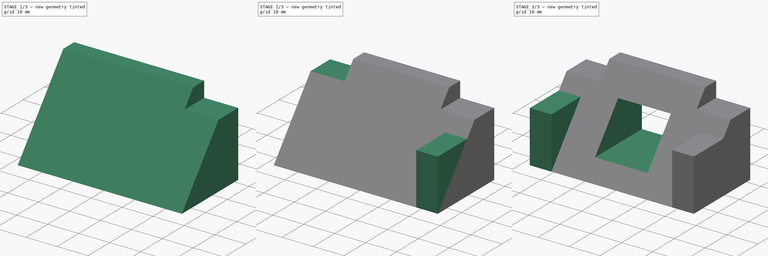
[diagram: build sequence overview — one tinted view per stage of 3, left to right]
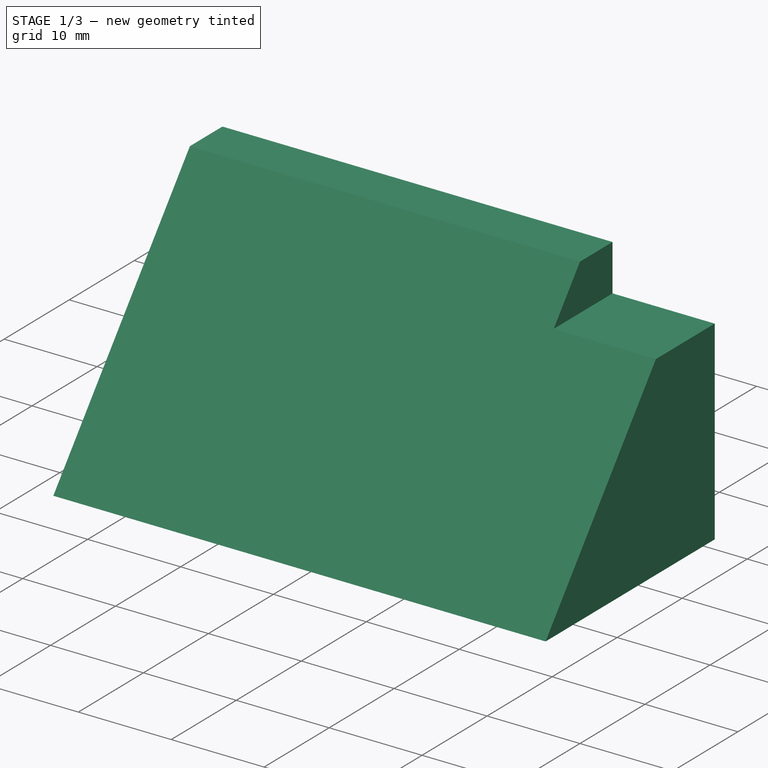
[diagram: stage 1 of 3 — iso view after this stage's code; geometry added in this stage tinted green]
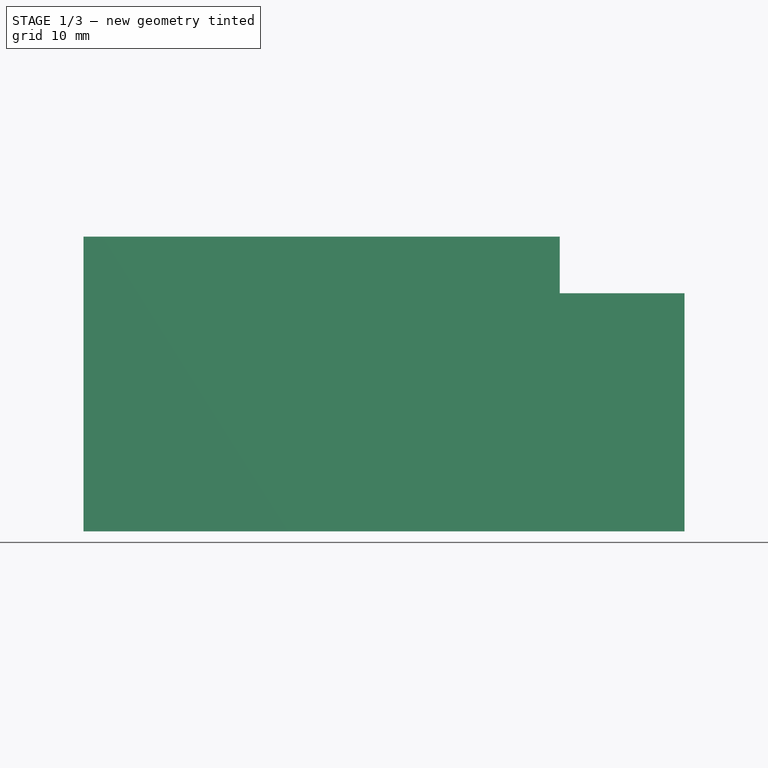
[diagram: stage 1 of 3 — front view after this stage's code; geometry added in this stage tinted green]
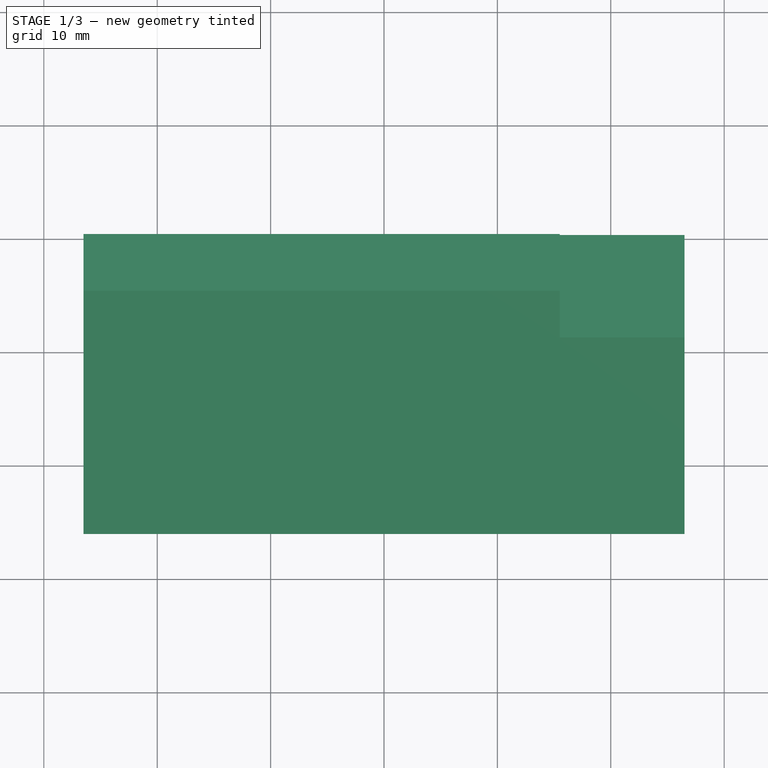
[diagram: stage 1 of 3 — top view after this stage's code; geometry added in this stage tinted green]
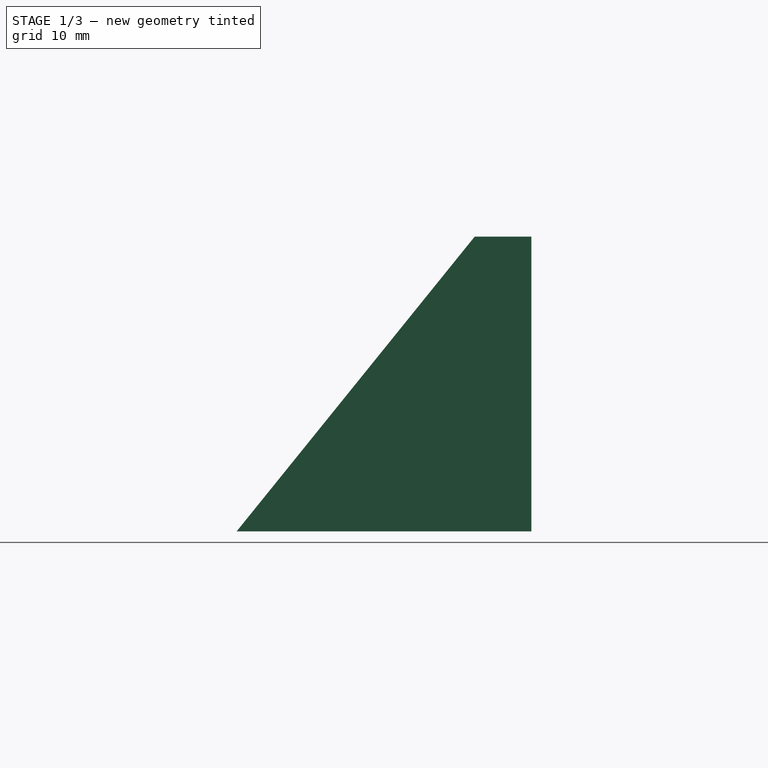
[diagram: stage 1 of 3 — right view after this stage's code; geometry added in this stage tinted green]
FCSTD DOCUMENT  (FreeCAD 0.17R9747 (Git))
Label: Pieza
License: All rights reserved
LicenseURL: http://en.wikipedia.org/wiki/All_rights_reserved
objects: Sketcher::SketchObject×5, PartDesign::Pad×2, PartDesign::Pocket×2, PartDesign::Mirrored×2, PartDesign::Body×1
note: 16 computed .brp shape members not serialized (recipe doc carries the construction recipe); baked Part::Feature solids carry a one-line shape summary decoded from their .brp

FEATURE [Sketcher::SketchObject] Sketch
  MapMode = 5
  Placement = pos=(0,0,0) rot=(0.57735,0.57735,0.57735;2.0944rad)
  Support = -> [YZ_Plane]
  sketch-geometry (4):
    g0: LineSegment StartX=0 StartY=0 StartZ=0 EndX=0 EndY=26 EndZ=0
    g1: LineSegment StartX=0 StartY=26 StartZ=0 EndX=-5 EndY=26 EndZ=0
    g2: LineSegment StartX=-5 StartY=26 StartZ=0 EndX=-26 EndY=0 EndZ=0
    g3: LineSegment StartX=-26 StartY=0 StartZ=0 EndX=0 EndY=0 EndZ=0
  constraints (11):
    c: Coincident(g-1,g0)
    c: PointOnObject(g0,g-2)
    c: Coincident(g0,g1)
    c: Coincident(g1,g2)
    c: PointOnObject(g3,g-1)
    c: Coincident(g3,g0)
    c: Horizontal(g1)
    c: Coincident(g2,g3)
    c: DistanceX(g3,g3) = 26
    c: DistanceY(g0,g0) = 26
    c: DistanceX(g1,g1) = 5
FEATURE [PartDesign::Pad] Pad  label="Cuerpo-inicial"
  Length = 26.5
  Length2 = 26.5
  Midplane = true
  Placement = pos=(0,0,0) rot=(0.57735,0.57735,0.57735;2.0944rad)
  Profile = -> Sketch
  Type = 4
FEATURE [Sketcher::SketchObject] Sketch001
  ExternalGeometry = -> [Pad]
  MapMode = 5
  Placement = pos=(0,0,0) rot=(0.57735,0.57735,0.57735;4.18879rad)
  Support = -> [Pad]
  sketch-geometry (4):
    g0: LineSegment StartX=21 StartY=26.5 StartZ=0 EndX=26 EndY=26.5 EndZ=0
    g1: LineSegment StartX=26 StartY=26.5 StartZ=0 EndX=26 EndY=15.5 EndZ=0
    g2: LineSegment StartX=26 StartY=15.5 StartZ=0 EndX=21 EndY=15.5 EndZ=0
    g3: LineSegment StartX=21 StartY=15.5 StartZ=0 EndX=21 EndY=26.5 EndZ=0
  constraints (11):
    c: Coincident(g0,g1)
    c: Coincident(g1,g2)
    c: Coincident(g2,g3)
    c: Coincident(g3,g0)
    c: Horizontal(g0)
    c: Horizontal(g2)
    c: Vertical(g1)
    c: Vertical(g3)
    c: DistanceX(g0,g0) = 5
    c: DistanceY(g1,g1) = 11
    c: Coincident(g0,g-3)
FEATURE [PartDesign::Pocket] Pocket  label="Rebaje"
  BaseFeature = -> Pad
  Length = 5
  Placement = pos=(0,0,0) rot=(0.57735,0.57735,0.57735;2.0944rad)
  Profile = -> Sketch001
  Type = 1
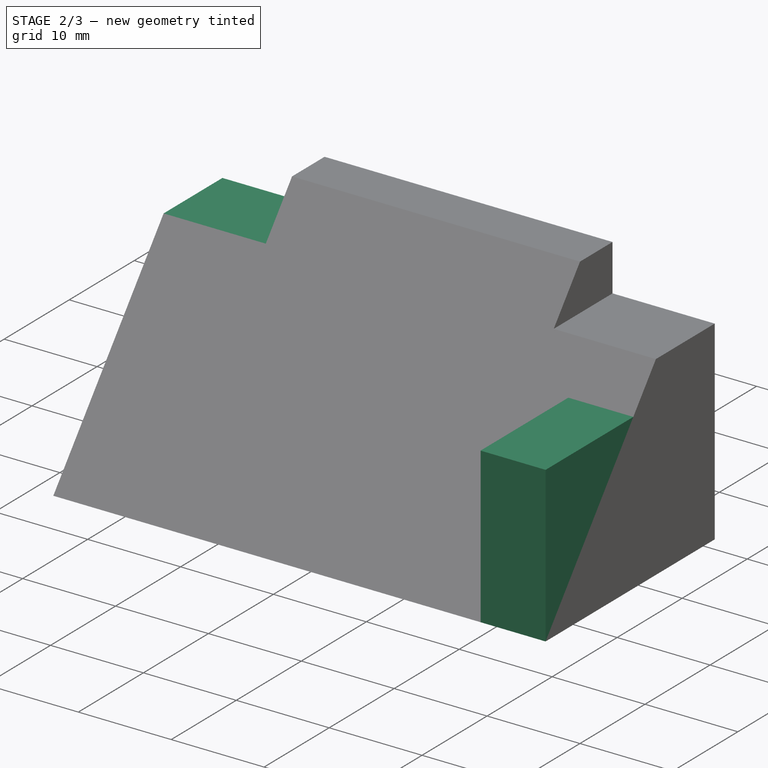
[diagram: stage 2 of 3 — iso view after this stage's code; geometry added in this stage tinted green]
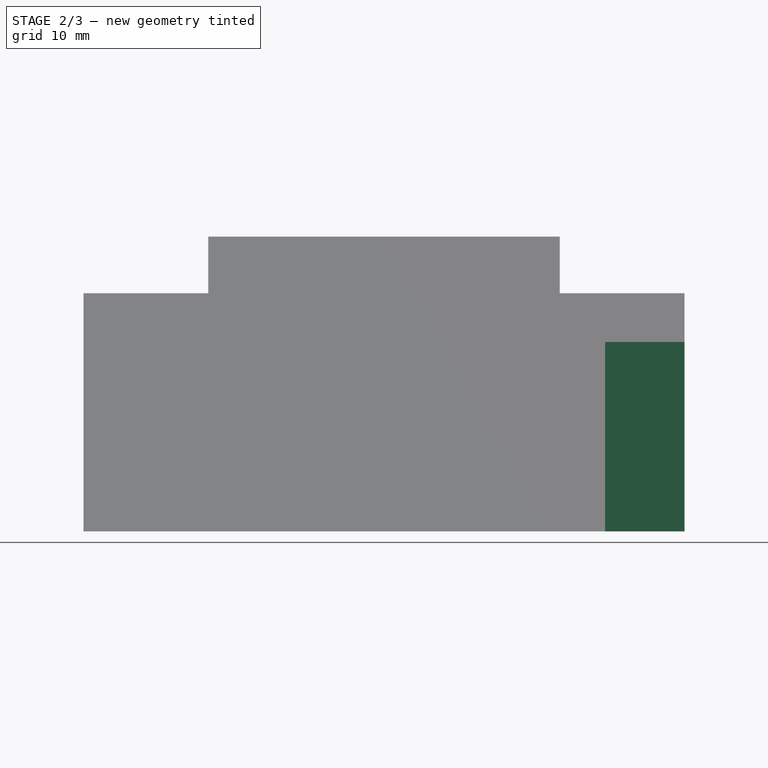
[diagram: stage 2 of 3 — front view after this stage's code; geometry added in this stage tinted green]
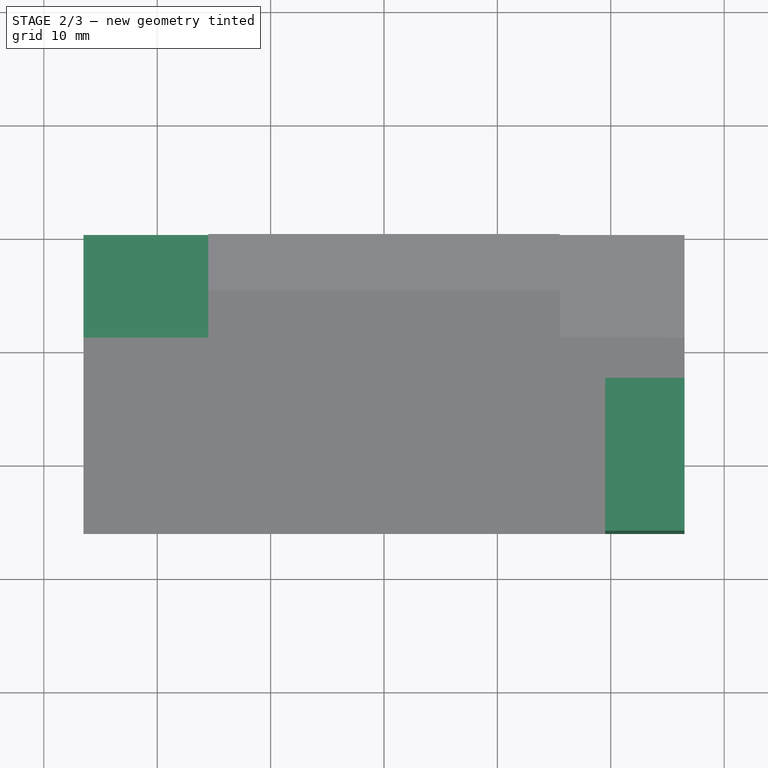
[diagram: stage 2 of 3 — top view after this stage's code; geometry added in this stage tinted green]
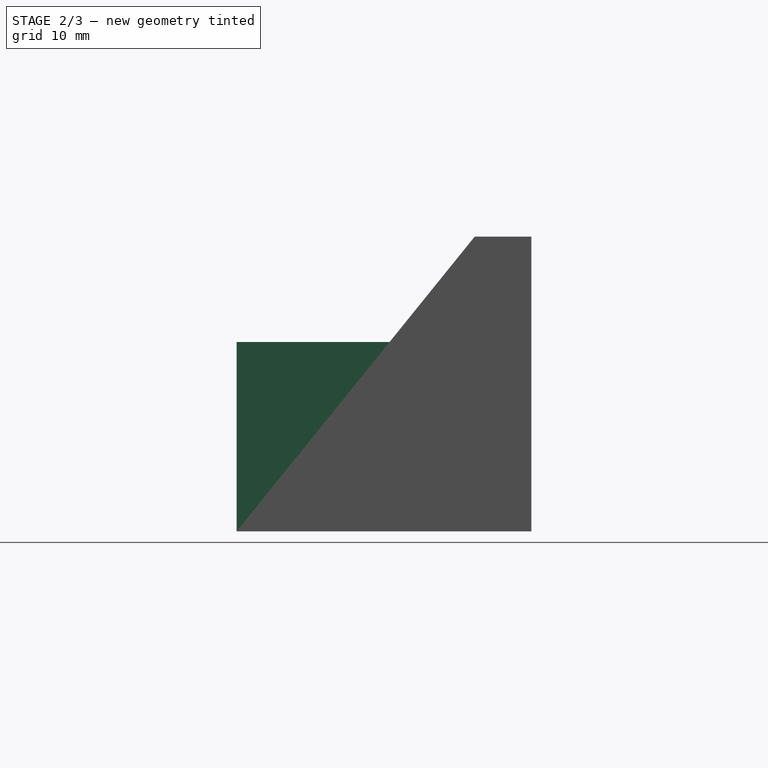
[diagram: stage 2 of 3 — right view after this stage's code; geometry added in this stage tinted green]
FEATURE [PartDesign::Mirrored] Mirrored  label="Rebaje-espejado"
  BaseFeature = -> Pocket
  MirrorPlane = -> YZ_Plane
  Originals = -> [Pocket]
  Placement = pos=(0,0,0) rot=(0.57735,0.57735,0.57735;2.0944rad)
FEATURE [Sketcher::SketchObject] Sketch002
  ExternalGeometry = -> [Mirrored]
  MapMode = 5
  Placement = pos=(0,0,0) rot=(0.57735,0.57735,0.57735;4.18879rad)
  Support = -> [Mirrored]
  sketch-geometry (4):
    g0: LineSegment StartX=3e-12 StartY=26.5 StartZ=0 EndX=16.7 EndY=26.5 EndZ=0
    g1: LineSegment StartX=16.7 StartY=26.5 StartZ=0 EndX=16.7 EndY=19.5 EndZ=0
    g2: LineSegment StartX=16.7 StartY=19.5 StartZ=0 EndX=3e-12 EndY=19.5 EndZ=0
    g3: LineSegment StartX=3e-12 StartY=19.5 StartZ=0 EndX=3e-12 EndY=26.5 EndZ=0
  constraints (11):
    c: Coincident(g0,g1)
    c: Coincident(g1,g2)
    c: Coincident(g2,g3)
    c: Coincident(g3,g0)
    c: Horizontal(g0)
    c: Horizontal(g2)
    c: Vertical(g1)
    c: Vertical(g3)
    c: DistanceX(g2,g2) = 16.7
    c: DistanceY(g1,g1) = 7
    c: Coincident(g0,g-3)
FEATURE [PartDesign::Pad] Pad001  label="Saliente"
  BaseFeature = -> Mirrored
  Length = 26
  Length2 = 100
  Placement = pos=(0,0,0) rot=(0.57735,0.57735,0.57735;2.0944rad)
  Profile = -> Sketch002
  Reversed = true
  Type = 0
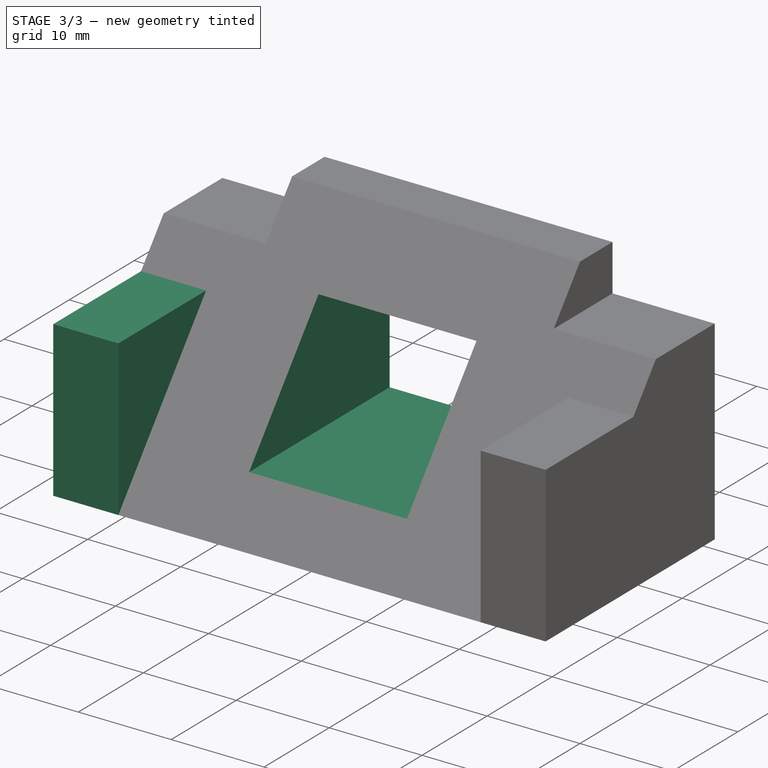
[diagram: stage 3 of 3 — iso view after this stage's code; geometry added in this stage tinted green]
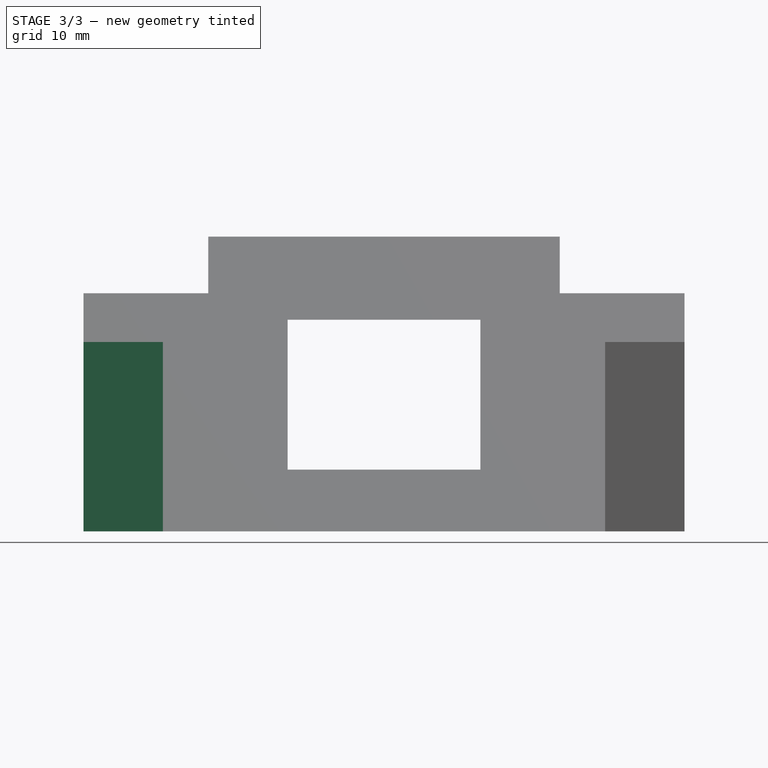
[diagram: stage 3 of 3 — front view after this stage's code; geometry added in this stage tinted green]
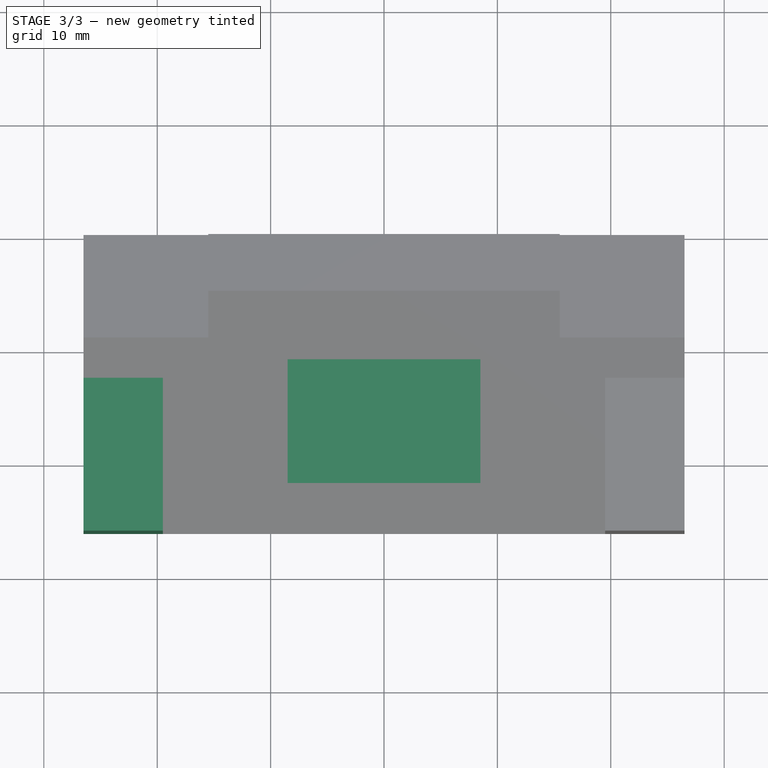
[diagram: stage 3 of 3 — top view after this stage's code; geometry added in this stage tinted green]
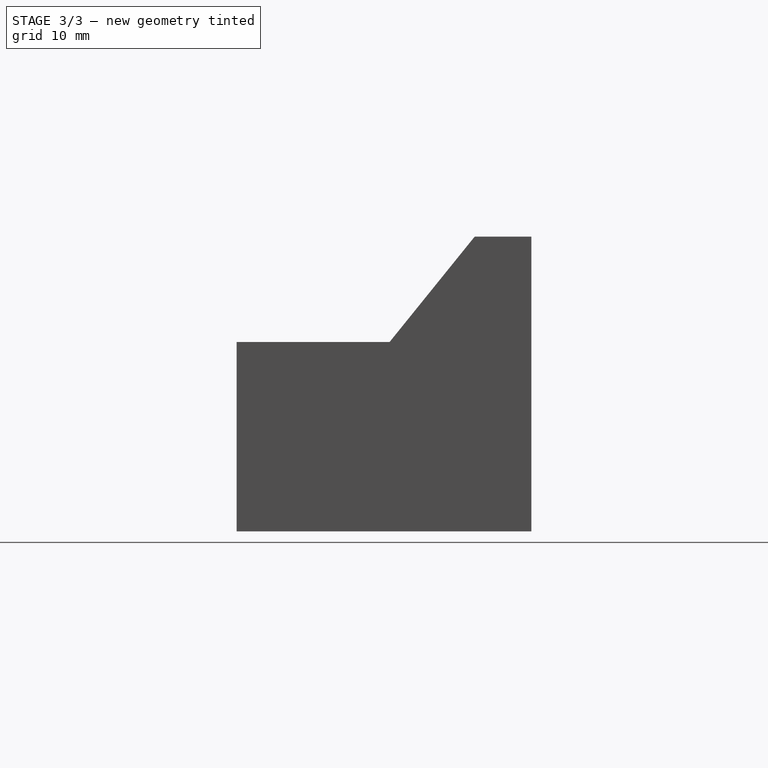
[diagram: stage 3 of 3 — right view after this stage's code; geometry added in this stage tinted green]
FEATURE [PartDesign::Mirrored] Mirrored001  label="Saliente-espejado"
  BaseFeature = -> Pad001
  MirrorPlane = -> YZ_Plane
  Originals = -> [Pad001]
  Placement = pos=(0,0,0) rot=(0.57735,0.57735,0.57735;2.0944rad)
FEATURE [Sketcher::SketchObject] Sketch003
  ExternalGeometry = -> [Mirrored001]
  MapMode = 5
  Placement = pos=(-3e-12,-15.735,12.709) rot=(0.395866,0.395866,-0.828601;1.75771rad)
  Support = -> [Mirrored001]
  sketch-geometry (4):
    g0: LineSegment StartX=-7.66324 StartY=8.5 StartZ=0 EndX=9.33676 EndY=8.5 EndZ=0
    g1: LineSegment StartX=9.33676 StartY=8.5 StartZ=0 EndX=9.33676 EndY=-8.5 EndZ=0
    g2: LineSegment StartX=9.33676 StartY=-8.5 StartZ=0 EndX=-7.66324 EndY=-8.5 EndZ=0
    g3: LineSegment StartX=-7.66324 StartY=-8.5 StartZ=0 EndX=-7.66324 EndY=8.5 EndZ=0
  constraints (12):
    c: Coincident(g0,g1)
    c: Coincident(g1,g2)
    c: Coincident(g2,g3)
    c: Coincident(g3,g0)
    c: Horizontal(g0)
    c: Horizontal(g2)
    c: Vertical(g1)
    c: Vertical(g3)
    c: Equal(g3,g0)
    c: DistanceX(g2,g2) = 17
    c: DistanceX(g0,g-3) = 7
    c: DistanceY(g0,g-3) = 11
FEATURE [Sketcher::SketchObject] Sketch004
  ExternalGeometry = -> [Sketch003]
  MapMode = 5
  Placement = pos=(0,0,0) rot=(0.57735,0.57735,0.57735;4.18879rad)
  Support = -> [Mirrored001]
  sketch-geometry (4):
    g0: LineSegment StartX=5.44559 StartY=8.5 StartZ=0 EndX=18.6706 EndY=8.5 EndZ=0
    g1: LineSegment StartX=18.6706 StartY=8.5 StartZ=0 EndX=18.6706 EndY=-8.5 EndZ=0
    g2: LineSegment StartX=18.6706 StartY=-8.5 StartZ=0 EndX=5.44559 EndY=-8.5 EndZ=0
    g3: LineSegment StartX=5.44559 StartY=-8.5 StartZ=0 EndX=5.44559 EndY=8.5 EndZ=0
  constraints (10):
    c: Coincident(g0,g1)
    c: Coincident(g1,g2)
    c: Coincident(g2,g3)
    c: Coincident(g3,g0)
    c: Horizontal(g0)
    c: Horizontal(g2)
    c: Vertical(g1)
    c: Vertical(g3)
    c: Coincident(g0,g-3)
    c: Coincident(g-4,g1)
FEATURE [PartDesign::Pocket] Pocket001  label="Pieza-clasica-simetrias"
  BaseFeature = -> Mirrored001
  Length = 5
  Placement = pos=(0,0,0) rot=(0.57735,0.57735,0.57735;2.0944rad)
  Profile = -> Sketch004
  Type = 1
FEATURE [PartDesign::Body] Body
  Group = -> [Sketch,Pad,Sketch001,Pocket,Mirrored,Sketch002,Pad001,Mirrored001,Sketch003,Sketch004,Pocket001]
  Origin = -> Origin
  Tip = -> Pocket001
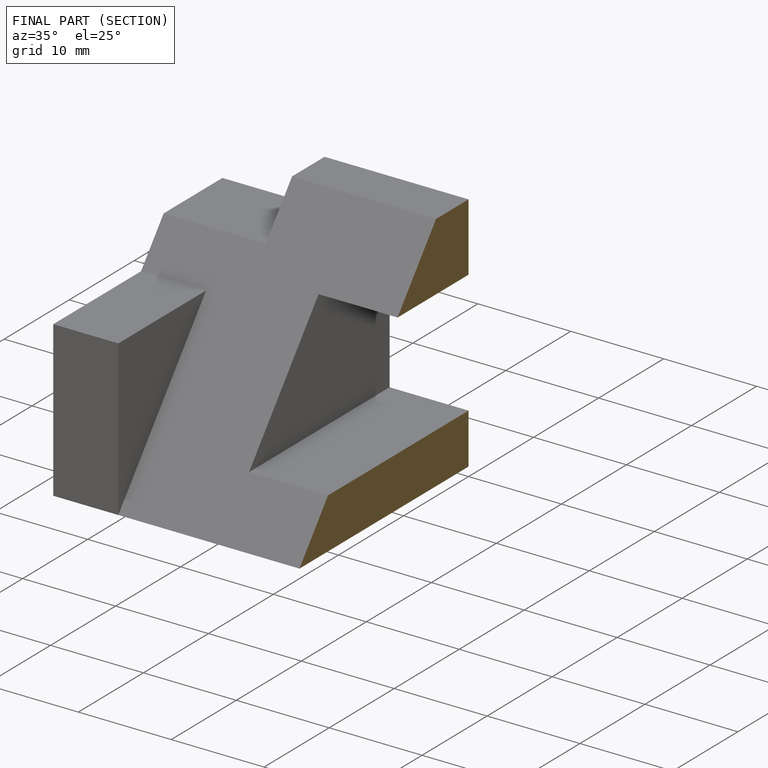
[diagram: finished part — half-section view (interior)]
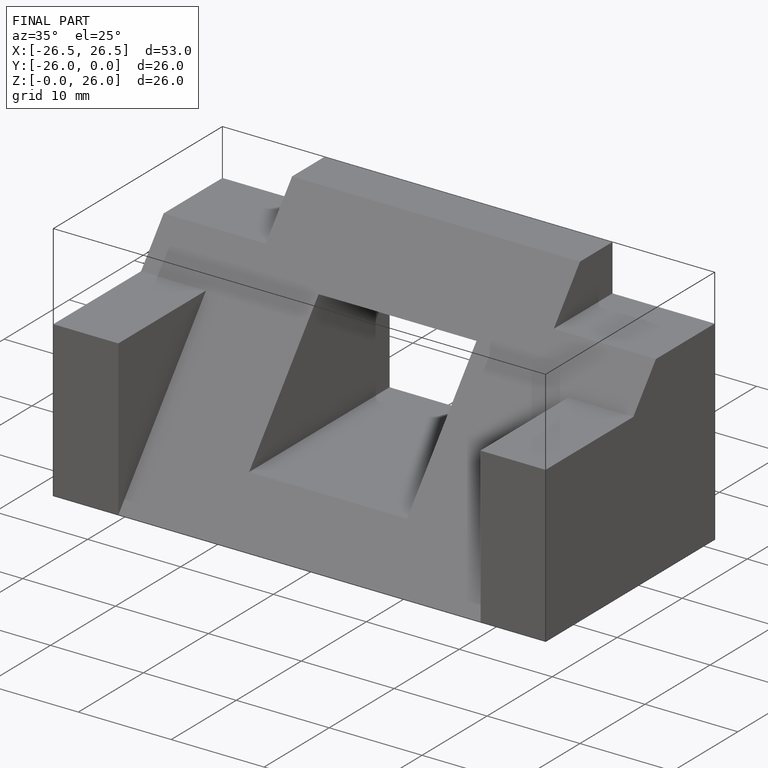
[diagram: finished part — iso view with bounding-box wireframe]
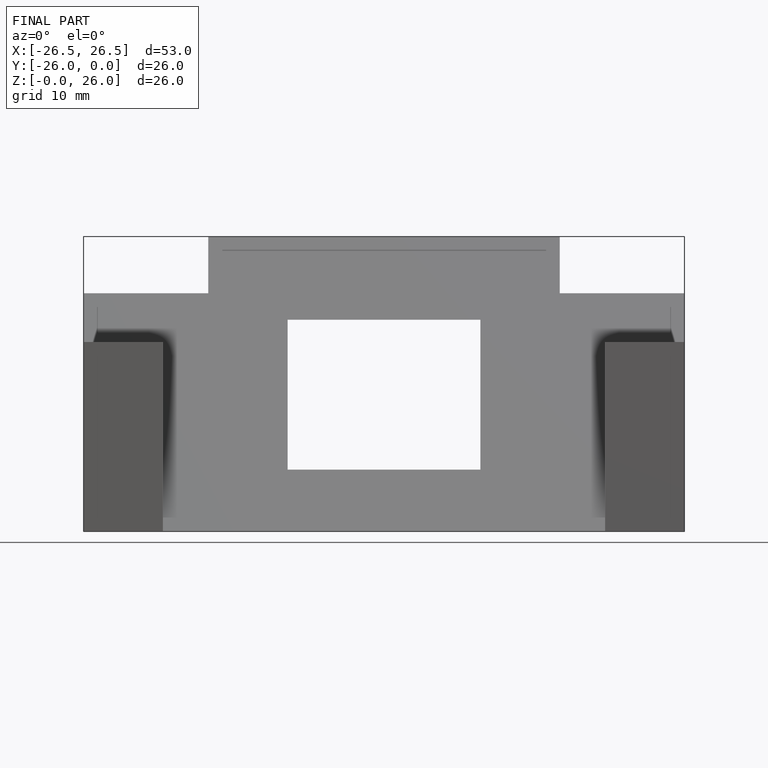
[diagram: finished part — front view with bounding-box wireframe]
